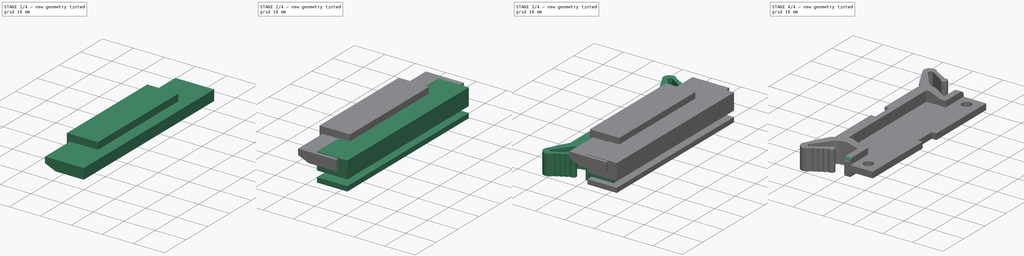
[diagram: build sequence overview — one tinted view per stage of 4, left to right]
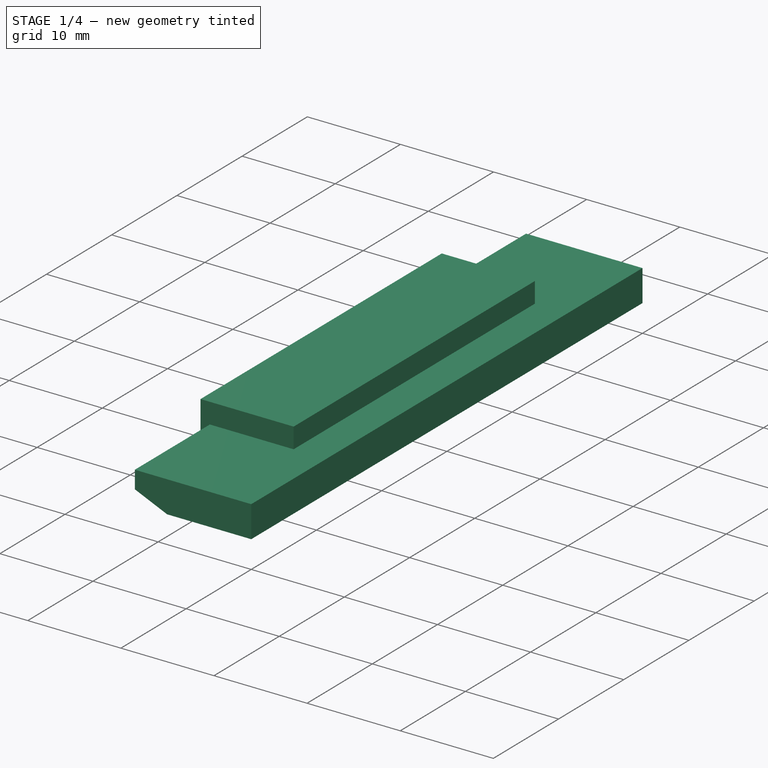
[diagram: stage 1 of 4 — iso view after this stage's code; geometry added in this stage tinted green]
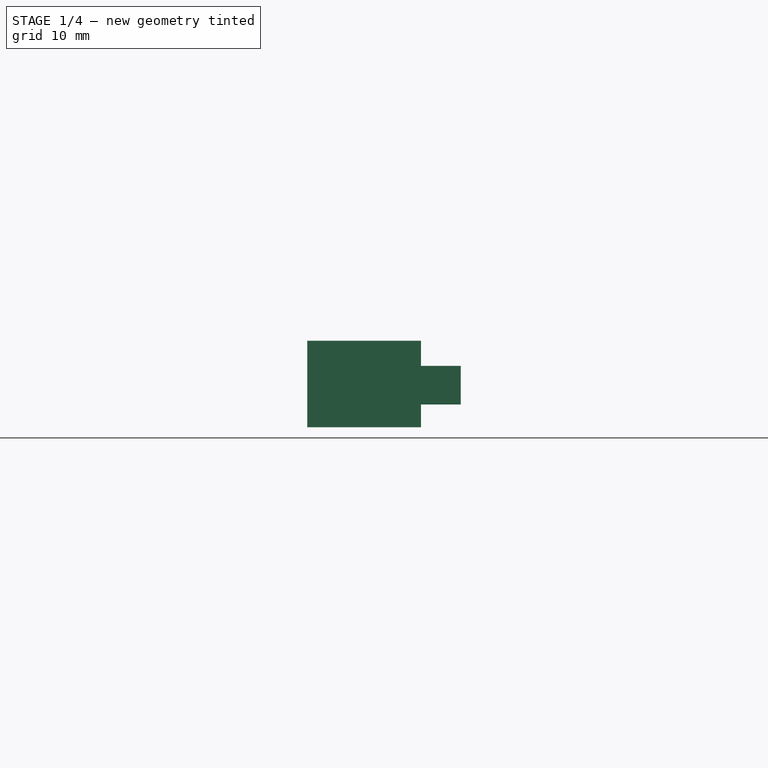
[diagram: stage 1 of 4 — front view after this stage's code; geometry added in this stage tinted green]
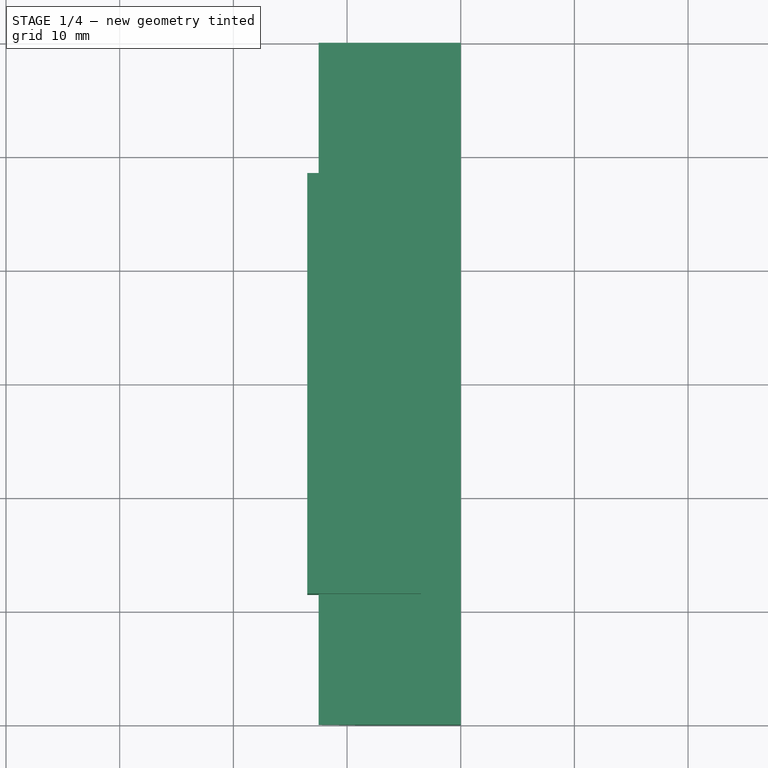
[diagram: stage 1 of 4 — top view after this stage's code; geometry added in this stage tinted green]
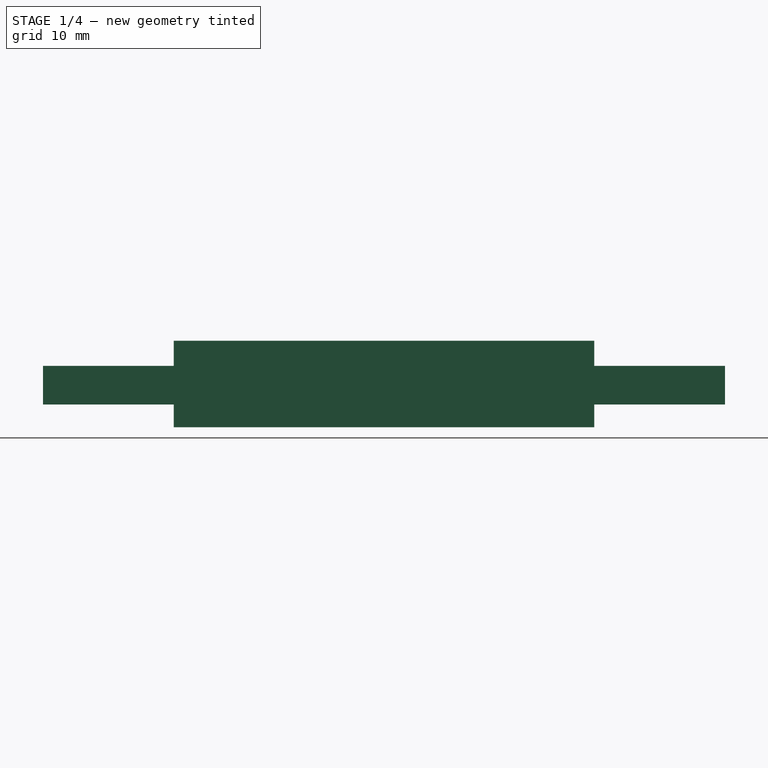
[diagram: stage 1 of 4 — right view after this stage's code; geometry added in this stage tinted green]
FCSTD DOCUMENT  (FreeCAD 1.0R39285 (Git))
Label: Tirador
License: Creative Commons Attribution-NonCommercial 4.0
LicenseURL: http://creativecommons.org/licenses/by-nc/4.0/
objects: Part::Feature×17, Part::Box×5, Sketcher::SketchObject×2, Part::Extrusion×2, App::Part×1, Image::ImagePlane×1, Part::MultiFuse×1, Part::Cut×1, Part::Fillet×1
note: 31 computed .brp shape members not serialized (recipe doc carries the construction recipe); baked Part::Feature solids carry a one-line shape summary decoded from their .brp

FEATURE [Part::Box] Box004  label="Cubo004"
  AttacherType = Attacher::AttachEngine3D
  Height = 7.6
  Length = 10
  Placement = pos=(-13.5,-18.5,3.6) rot=(0,0,1;0rad)
  Width = 37
FEATURE [Sketcher::SketchObject] Sketch001
  ArcFitTolerance = 1e-06
  FullyConstrained = false
  MakeInternals = false
  Placement = pos=(0,0,0) rot=(1,0,0;1.5708rad)
  sketch-geometry (5):
    g0: LineSegment StartX=0 StartY=5.6 StartZ=0 EndX=-9.03468 EndY=5.6 EndZ=0
    g1: LineSegment StartX=-9.03468 StartY=5.6 StartZ=0 EndX=-12.5 EndY=7.1 EndZ=0
    g2: LineSegment StartX=-12.5 StartY=7.1 StartZ=0 EndX=-12.5 EndY=9 EndZ=0
    g3: LineSegment StartX=-12.5 StartY=9 StartZ=0 EndX=0 EndY=9 EndZ=0
    g4: LineSegment StartX=0 StartY=9 StartZ=0 EndX=0 EndY=5.6 EndZ=0
  constraints (14):
    c: Horizontal(g0)
    c: Coincident(g0,g1)
    c: Coincident(g1,g2)
    c: Vertical(g2)
    c: Coincident(g2,g3)
    c: Horizontal(g3)
    c: Coincident(g3,g4)
    c: Coincident(g4,g0)
    c: Vertical(g4)
    c: PointOnObject(g3,g-2)
    c: DistanceY(g0) = 5.6
    c: DistanceX(g3,g3) = 12.5
    c: DistanceY(g2,g2) = 1.9
    c: DistanceY(g4,g4) = 3.4
FEATURE [Part::Extrusion] Extrude001
  Base = -> Sketch001
  Dir = (0,-1,2e-16)
  DirMode = 2
  FaceMakerClass = Part::FaceMakerBullseye
  FaceMakerMode = 3
  LengthFwd = 30
  LengthRev = 30
  Solid = true
  Symmetric = false
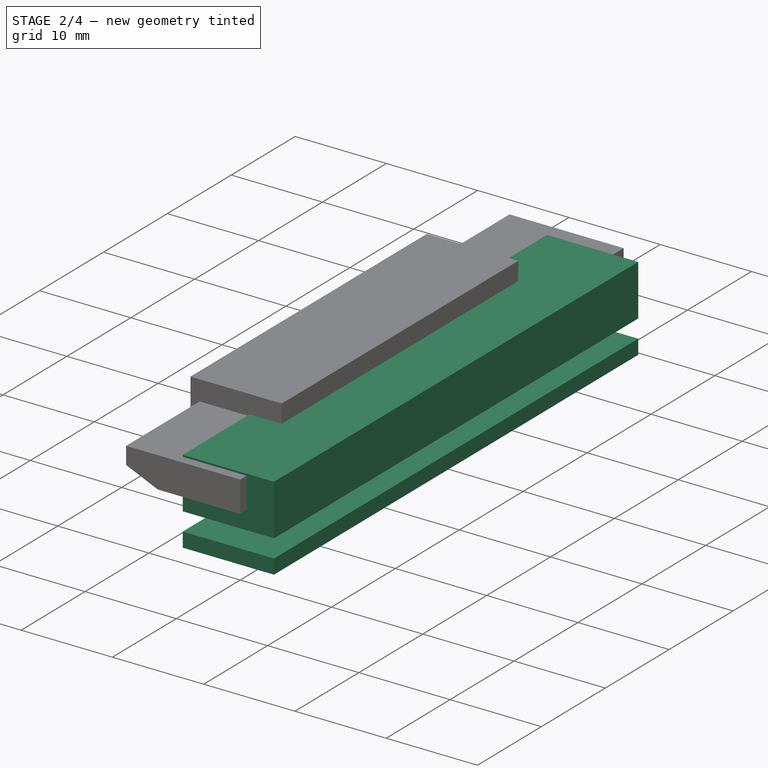
[diagram: stage 2 of 4 — iso view after this stage's code; geometry added in this stage tinted green]
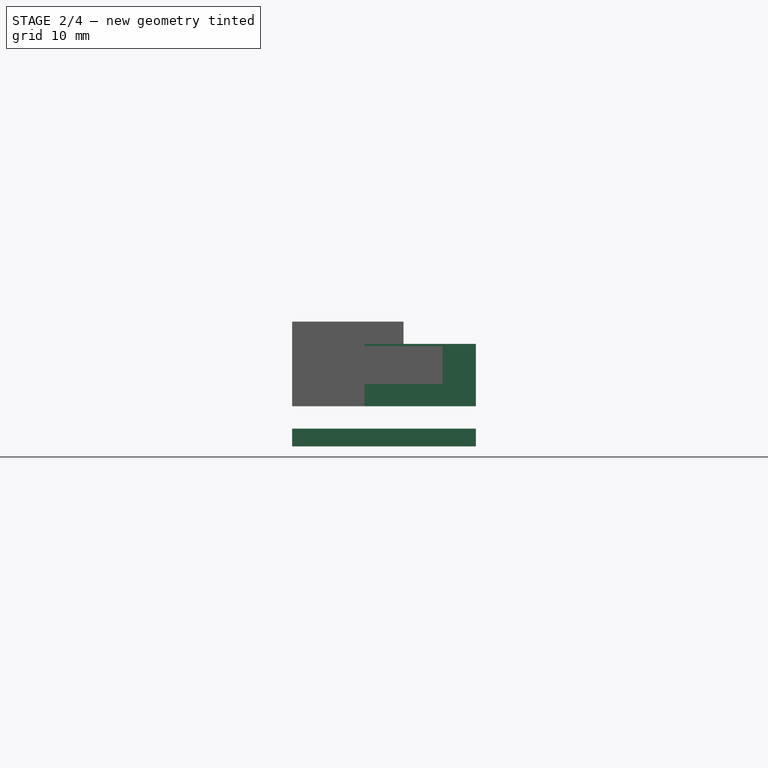
[diagram: stage 2 of 4 — front view after this stage's code; geometry added in this stage tinted green]
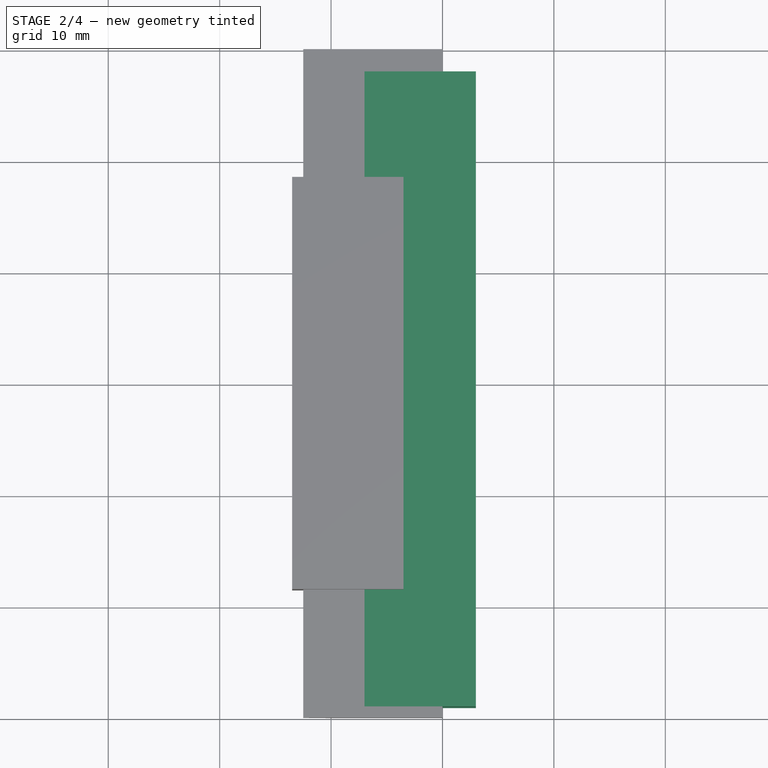
[diagram: stage 2 of 4 — top view after this stage's code; geometry added in this stage tinted green]
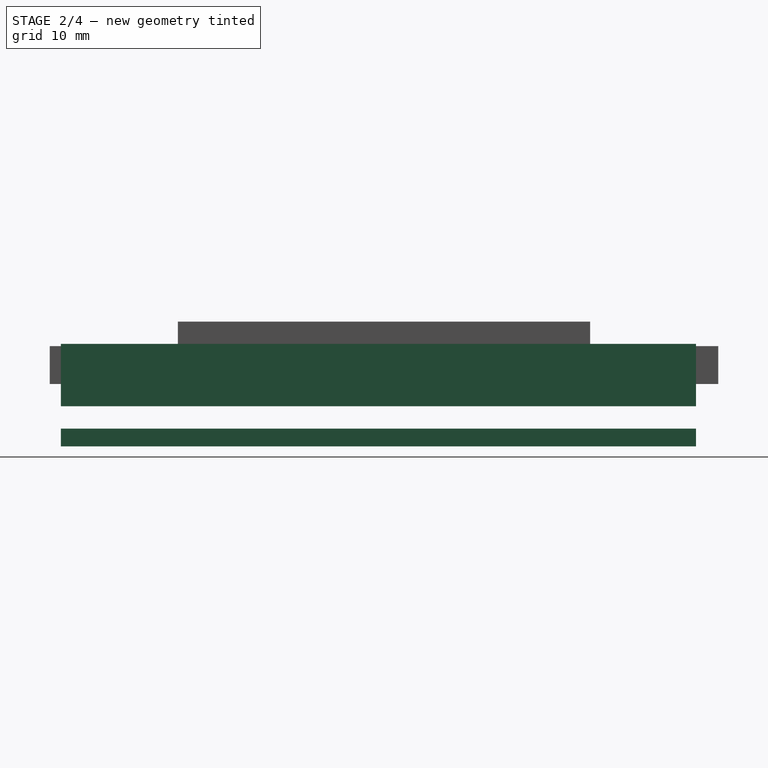
[diagram: stage 2 of 4 — right view after this stage's code; geometry added in this stage tinted green]
FEATURE [Part::Box] Box001  label="Cubo001"
  AttacherType = Attacher::AttachEngine3D
  Height = 1.6
  Length = 10
  Placement = pos=(-7,-29,0) rot=(0,0,1;0rad)
  Width = 57
FEATURE [Part::Box] Box002  label="Cubo002"
  AttacherType = Attacher::AttachEngine3D
  Height = 1.6
  Length = 10
  Placement = pos=(-13.5,-16,0) rot=(0,0,1;0rad)
  Width = 32
FEATURE [Part::Box] Box003  label="Cubo003"
  AttacherType = Attacher::AttachEngine3D
  Height = 5.6
  Length = 10
  Placement = pos=(-7,-29,3.6) rot=(0,0,1;0rad)
  Width = 57
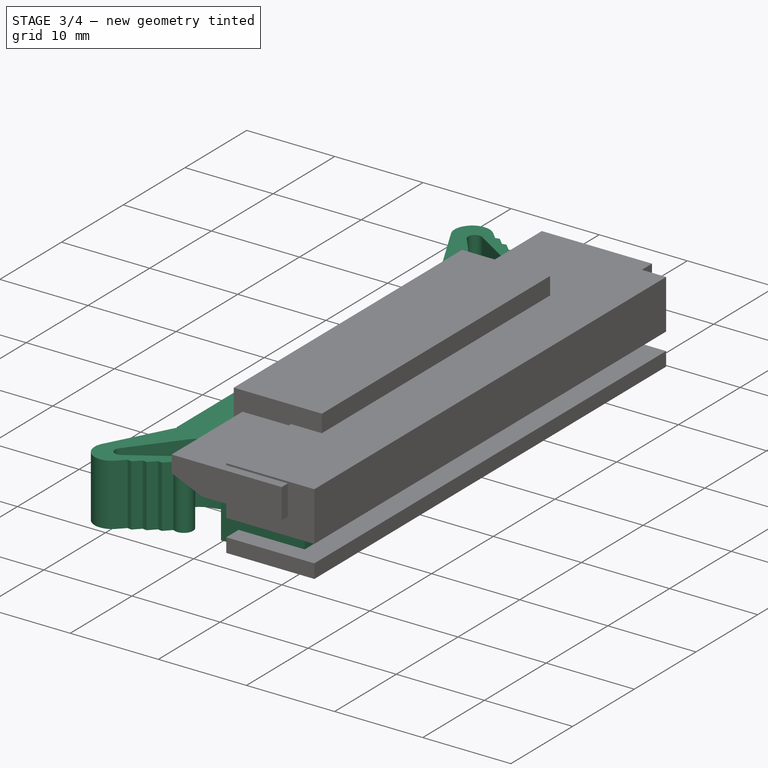
[diagram: stage 3 of 4 — iso view after this stage's code; geometry added in this stage tinted green]
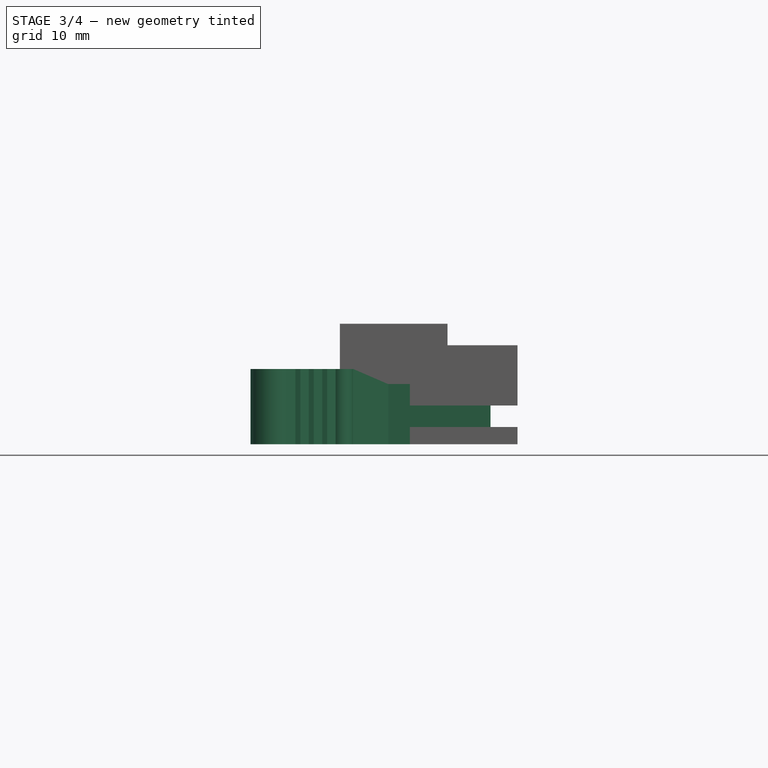
[diagram: stage 3 of 4 — front view after this stage's code; geometry added in this stage tinted green]
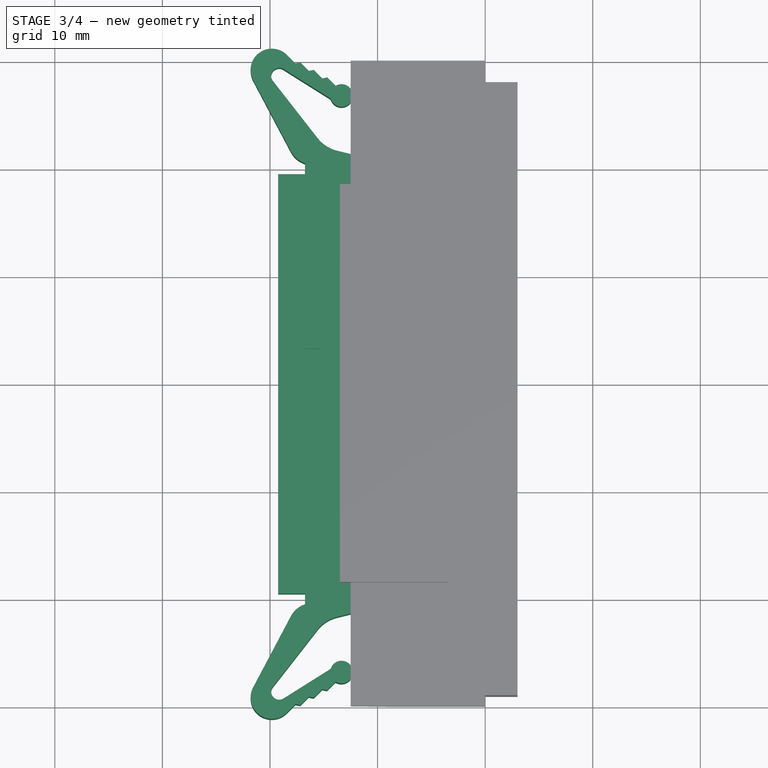
[diagram: stage 3 of 4 — top view after this stage's code; geometry added in this stage tinted green]
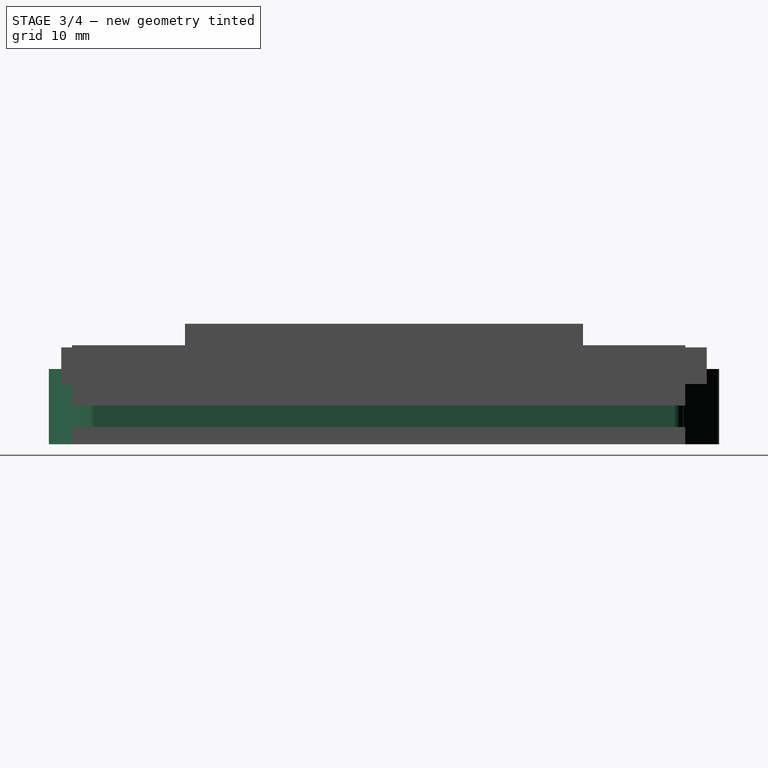
[diagram: stage 3 of 4 — right view after this stage's code; geometry added in this stage tinted green]
FEATURE [Part::Feature] Part__Feature  label="R_Axial_DIN0207_L6.3mm_D2.5mm_P15.24mm_Horizontal"
  Placement = pos=(180.606,-79.39,1.595) rot=(0,0,-1;1.5708rad)
  shape: bbox 2.706 x 16.04 x 5.603 mm, 17 faces (baked)
FEATURE [Part::Feature] Part__Feature001  label="DIP-28_W15.24mm_Socket"
  Placement = pos=(197.866,-109.22,1.595) rot=(0,0,1;1.5708rad)
  shape: bbox 35.56 x 17.78 x 7.787 mm, 375 faces (baked)
FEATURE [Part::Feature] Part__Feature002  label="DIP-28_W15.24mm_Socket001"
  Placement = pos=(197.866,-68.58,1.595) rot=(0,0,1;1.5708rad)
  shape: bbox 35.56 x 17.78 x 7.787 mm, 375 faces (baked)
FEATURE [Part::Feature] Part__Feature003  label="R_Axial_DIN0207_L6.3mm_D2.5mm_P10.16mm_Horizontal"
  Placement = pos=(181.102,-119.38,1.595) rot=(0,0,1;1.5708rad)
  shape: bbox 2.706 x 10.96 x 5.603 mm, 17 faces (baked)
FEATURE [Part::Feature] Part__Feature004  label="DIP-28_W15.24mm_Socket002"
  Placement = pos=(197.876,-88.88,1.595) rot=(0,0,1;1.5708rad)
  shape: bbox 35.56 x 17.78 x 7.787 mm, 375 faces (baked)
FEATURE [Part::Feature] Part__Feature005  label="DIP-14_W7.62mm"
  Placement = pos=(183.896,-102.235,1.595) rot=(0,0,1;0rad)
  shape: bbox 7.874 x 19.05 x 6.98 mm, 250 faces (baked)
FEATURE [Part::Feature] Part__Feature006  label="TO-220-3_Horizontal_TabDown"
  Placement = pos=(191.856,-52.578,1.595) rot=(0,0,1;1.5708rad)
  shape: bbox 19.74 x 10.25 x 10.78 mm, 80 faces (baked)
FEATURE [Part::Feature] Part__Feature007  label="DIP-14_W7.62mm001"
  Placement = pos=(183.896,-81.915,1.595) rot=(0,0,1;0rad)
  shape: bbox 7.874 x 19.05 x 6.98 mm, 250 faces (baked)
FEATURE [Part::Feature] Part__Feature008  label="DIP-28_W15.24mm_Socket003"
  Placement = pos=(197.866,-129.54,1.595) rot=(0,0,1;1.5708rad)
  shape: bbox 35.56 x 17.78 x 7.787 mm, 375 faces (baked)
FEATURE [Part::Feature] Part__Feature009  label="TO-92L_Inline_Wide"
  Placement = pos=(207.686,-48.98,1.595) rot=(0,0,1;3.14159rad)
  shape: bbox 5.58 x 3.745 x 13.2 mm, 27 faces (baked)
FEATURE [Part::Feature] Part__Feature010  label="C_Disc_D4.3mm_W1.9mm_P5.00mm"
  Placement = pos=(196.596,-99.568,1.595) rot=(0,0,1;3.14159rad)
  shape: bbox 5.5 x 1.9 x 6.4 mm, 10 faces (baked)
FEATURE [Part::Feature] Part__Feature011  label="DIP-14_W7.62mm002"
  Placement = pos=(183.896,-121.92,1.595) rot=(0,0,1;0rad)
  shape: bbox 7.874 x 19.05 x 6.98 mm, 250 faces (baked)
FEATURE [Part::Feature] Part__Feature012  label="C_Disc_D4.3mm_W1.9mm_P5.00mm001"
  Placement = pos=(196.85,-133.176,1.595) rot=(0,0,-1;1.5708rad)
  shape: bbox 1.9 x 5.5 x 6.4 mm, 10 faces (baked)
FEATURE [Part::Feature] Part__Feature013  label="CP_Radial_D8.0mm_P5.00mm"
  Placement = pos=(230.776,-50.0327,5.595) rot=(0.57735,0.57735,-0.57735;4.18879rad)
  shape: bbox 10 x 9.886 x 10.23 mm, 54 faces (baked)
FEATURE [Part::Feature] Part__Feature014  label="DIP-16_W7.62mm"
  Placement = pos=(183.642,-59.055,1.595) rot=(0,0,1;0rad)
  shape: bbox 7.874 x 19.18 x 6.98 mm, 284 faces (baked)
FEATURE [Part::Feature] Part__Feature015  label="C_Disc_D4.3mm_W1.9mm_P5.00mm002"
  Placement = pos=(190.166,-56.388,1.595) rot=(0,0,1;3.14159rad)
  shape: bbox 5.5 x 1.9 x 6.4 mm, 10 faces (baked)
FEATURE [Part::Feature] Part__Feature016  label="QL_GST_Rom_board_PCB"
  shape: bbox 74.68 x 99.06 x 1.51 mm, 287 faces (baked)
FEATURE [App::Part] QL_GST_Rom_board_1  label="QL_GST_Rom_board 1"
  Group = -> [Part__Feature,Part__Feature001,Part__Feature002,Part__Feature003,Part__Feature004,Part__Feature005,Part__Feature006,Part__Feature007,Part__Feature008,Part__Feature009,Part__Feature010,Part__Feature011,Part__Feature012,Part__Feature013,Part__Feature014,Part__Feature015,Part__Feature016]
  Origin = -> Origin
  Placement = pos=(-176.22,92.94,0) rot=(0,0,1;0rad)
FEATURE [Sketcher::SketchObject] Sketch
  ArcFitTolerance = 1e-06
  FullyConstrained = false
  MakeInternals = false
  Placement = pos=(0.5,0,1.6) rot=(0,0,1;0rad)
  sketch-geometry (52):
    g0: LineSegment StartX=-9.5 StartY=27 StartZ=0 EndX=0 EndY=27 EndZ=0
    g1: LineSegment StartX=0 StartY=27 StartZ=0 EndX=0 EndY=3.25 EndZ=0
    g2: LineSegment StartX=0 StartY=3.25 StartZ=0 EndX=-1.5 EndY=3.25 EndZ=0
    g3: LineSegment StartX=-1.5 StartY=3.25 StartZ=0 EndX=-1.5 EndY=-3.25 EndZ=0
    g4: LineSegment StartX=-1.5 StartY=-3.25 StartZ=0 EndX=0 EndY=-3.25 EndZ=0
    g5: LineSegment StartX=0 StartY=-3.25 StartZ=0 EndX=0 EndY=-27 EndZ=0
    g6: LineSegment StartX=-9.5 StartY=27 StartZ=0 EndX=-9.5 EndY=20.5 EndZ=0
    g7: LineSegment StartX=-9.5 StartY=20.5 StartZ=0 EndX=-14.25 EndY=21.6623 EndZ=0
    g8: ArcOfCircle CenterX=-13.4585 CenterY=24.8969 CenterZ=0 NormalX=0 NormalY=0 NormalZ=1 AngleXU=0 Radius=3.33 StartAngle=3.80466 EndAngle=4.47241
    g9: LineSegment StartX=-16.0829 StartY=22.8472 StartZ=0 EndX=-20.2311 EndY=28.1583 EndZ=0
    g10: LineSegment StartX=-19.2407 StartY=29.2549 StartZ=0 EndX=-14.8552 EndY=26.4964 EndZ=0
    g11: ArcOfCircle CenterX=-19.64 CenterY=28.62 CenterZ=0 NormalX=0 NormalY=0 NormalZ=1 AngleXU=0 Radius=0.75 StartAngle=1.00934 EndAngle=3.80466
    g12: ArcOfCircle CenterX=-13.85 CenterY=26.8 CenterZ=0 NormalX=0 NormalY=0 NormalZ=1 AngleXU=0 Radius=1.05 StartAngle=3.4349 EndAngle=8.40716
    g13: LineSegment StartX=-22.0767 StartY=28.2434 StartZ=0 EndX=-18.5626 EndY=21.608 EndZ=0
    g14: ArcOfCircle CenterX=-16.53 CenterY=22.6844 CenterZ=0 NormalX=0 NormalY=0 NormalZ=1 AngleXU=0 Radius=2.3 StartAngle=3.62864 EndAngle=4.39399
    g15: LineSegment StartX=-17.25 StartY=20.5 StartZ=0 EndX=-17.25 EndY=3.25 EndZ=0
    g16: LineSegment StartX=-18.9226 StartY=30.5659 StartZ=0 EndX=-18.1401 EndY=29.7786 EndZ=0
    g17: LineSegment StartX=-18.1401 StartY=29.7786 StartZ=0 EndX=-17.6765 EndY=29.8708 EndZ=0
    g18: LineSegment StartX=-17.6765 StartY=29.8708 StartZ=0 EndX=-16.8939 EndY=29.0835 EndZ=0
    g19: LineSegment StartX=-16.8939 StartY=29.0835 StartZ=0 EndX=-16.4303 EndY=29.1757 EndZ=0
    g20: LineSegment StartX=-16.4303 StartY=29.1757 StartZ=0 EndX=-15.6478 EndY=28.3885 EndZ=0
    g21: LineSegment StartX=-15.6478 StartY=28.3885 StartZ=0 EndX=-15.1842 EndY=28.4807 EndZ=0
    g22: LineSegment StartX=-15.1842 StartY=28.4807 StartZ=0 EndX=-14.4017 EndY=27.6934 EndZ=0
    g23: ArcOfCircle CenterX=-20.3269 CenterY=29.1701 CenterZ=0 NormalX=0 NormalY=0 NormalZ=1 AngleXU=0 Radius=1.98 StartAngle=0.782367 EndAngle=3.62864
    g24: LineSegment [constr] StartX=-20.3269 StartY=29.1701 StartZ=0 EndX=-9.5 EndY=20.5 EndZ=0
    g25: LineSegment StartX=-9.5 StartY=-27 StartZ=0 EndX=0 EndY=-27 EndZ=0
    g26: LineSegment StartX=-9.5 StartY=-27 StartZ=0 EndX=-9.5 EndY=-20.5 EndZ=0
    g27: LineSegment StartX=-9.5 StartY=-20.5 StartZ=0 EndX=-14.25 EndY=-21.6623 EndZ=0
    g28: ArcOfCircle CenterX=-13.4585 CenterY=-24.8969 CenterZ=0 NormalX=0 NormalY=0 NormalZ=1 AngleXU=0 Radius=3.33 StartAngle=1.81078 EndAngle=2.47853
    g29: LineSegment StartX=-16.0829 StartY=-22.8472 StartZ=0 EndX=-20.2311 EndY=-28.1583 EndZ=0
    g30: LineSegment StartX=-19.2407 StartY=-29.2549 StartZ=0 EndX=-14.8552 EndY=-26.4964 EndZ=0
    g31: ArcOfCircle CenterX=-19.64 CenterY=-28.62 CenterZ=0 NormalX=0 NormalY=0 NormalZ=1 AngleXU=0 Radius=0.75 StartAngle=2.47853 EndAngle=5.27385
    g32: ArcOfCircle CenterX=-13.85 CenterY=-26.8 CenterZ=0 NormalX=0 NormalY=0 NormalZ=1 AngleXU=0 Radius=1.05 StartAngle=4.15921 EndAngle=9.13147
    g33: LineSegment StartX=-22.0767 StartY=-28.2434 StartZ=0 EndX=-18.5626 EndY=-21.608 EndZ=0
    g34: ArcOfCircle CenterX=-16.53 CenterY=-22.6844 CenterZ=0 NormalX=0 NormalY=0 NormalZ=1 AngleXU=0 Radius=2.3 StartAngle=1.88919 EndAngle=2.65455
    g35: LineSegment StartX=-18.9226 StartY=-30.5659 StartZ=0 EndX=-18.1401 EndY=-29.7786 EndZ=0
    g36: LineSegment StartX=-18.1401 StartY=-29.7786 StartZ=0 EndX=-17.6765 EndY=-29.8708 EndZ=0
    g37: LineSegment StartX=-17.6765 StartY=-29.8708 StartZ=0 EndX=-16.8939 EndY=-29.0835 EndZ=0
    g38: LineSegment StartX=-16.8939 StartY=-29.0835 StartZ=0 EndX=-16.4303 EndY=-29.1757 EndZ=0
    g39: LineSegment StartX=-16.4303 StartY=-29.1757 StartZ=0 EndX=-15.6478 EndY=-28.3885 EndZ=0
    g40: LineSegment StartX=-15.6478 StartY=-28.3885 StartZ=0 EndX=-15.1842 EndY=-28.4807 EndZ=0
    g41: LineSegment StartX=-15.1842 StartY=-28.4807 StartZ=0 EndX=-14.4017 EndY=-27.6934 EndZ=0
    g42: ArcOfCircle CenterX=-20.3269 CenterY=-29.1701 CenterZ=0 NormalX=0 NormalY=0 NormalZ=1 AngleXU=0 Radius=1.98 StartAngle=2.65455 EndAngle=5.50082
    g43: LineSegment [constr] StartX=-20.3269 StartY=-29.1701 StartZ=0 EndX=-9.5 EndY=-20.5 EndZ=0
    g44: LineSegment StartX=-17.25 StartY=3.25 StartZ=0 EndX=-15.75 EndY=3.25 EndZ=0
    g45: LineSegment StartX=-15.75 StartY=-3.25 StartZ=0 EndX=-17.25 EndY=-3.25 EndZ=0
    g46: LineSegment StartX=-17.25 StartY=-3.25 StartZ=0 EndX=-17.25 EndY=-20.5 EndZ=0
    g47: LineSegment StartX=-15.75 StartY=3.25 StartZ=0 EndX=-15.75 EndY=-1.3e-15 EndZ=0
    g48: LineSegment StartX=-15.75 StartY=-1.3e-15 StartZ=0 EndX=-15.75 EndY=-3.25 EndZ=0
    g49: LineSegment [constr] StartX=-15.75 StartY=-1.3e-15 StartZ=0 EndX=-1.5 EndY=0 EndZ=0
    g50: Circle CenterX=-4 CenterY=23.375 CenterZ=0 NormalX=0 NormalY=0 NormalZ=1 AngleXU=0 Radius=1.6
    g51: Circle CenterX=-4 CenterY=-23.375 CenterZ=0 NormalX=0 NormalY=0 NormalZ=1 AngleXU=0 Radius=1.53347
  constraints (144):
    c: Horizontal(g0)
    c: Coincident(g0,g1)
    c: Vertical(g1)
    c: Coincident(g1,g2)
    c: Coincident(g2,g3)
    c: Vertical(g3)
    c: Coincident(g3,g4)
    c: Coincident(g4,g5)
    c: Vertical(g5)
    c: Horizontal(g2)
    c: Horizontal(g4)
    c: Coincident(g6,g0)
    c: Vertical(g6)
    c: Equal(g1,g5)
    c: Vertical(g4,g1)
    c: Coincident(g7,g6)
    c: Coincident(g12,g10)
    c: Tangent(g11,g9) = 1.5708
    c: Tangent(g11,g10) = 1.5708
    c: Tangent(g9,g8) = 1.5708
    c: Tangent(g8,g7) = 1.5708
    c: Vertical(g15)
    c: Coincident(g14,g15)
    c: Tangent(g14,g13) = -1.5708
    c: Coincident(g16,g17)
    c: Coincident(g17,g18)
    c: Coincident(g18,g19)
    c: Coincident(g19,g20)
    c: Coincident(g20,g21)
    c: Coincident(g21,g22)
    c: Coincident(g22,g12)
    c: DistanceY(g5,g0) = 54
    c: DistanceX(g4,g4) = 1.5
    c: DistanceY(g3,g3) = 6.5
    c: DistanceY(g6,g6) = 6.5
    c: Radius(g11) = 0.75
    c: DistanceX(g11,g0) = 10.14
    c: DistanceY(g0,g11) = 1.62
    c: Radius(g8) = 3.33
    c: Angle(g6,g7) = 1.33081
    c: DistanceX(g7,g6) = 4.75
    c: DistanceX(g11,g12) = 5.79
    c: Radius(g12) = 1.05
    c: Angle(g9,g10) = 0.346273
    c: DistanceX(g14,g7) = 3
    c: Radius(g14) = 2.3
    c: Horizontal(g14,g6)
    c: Parallel(g17,g19)
    c: Parallel(g19,g21)
    c: Equal(g17,g19)
    c: Equal(g19,g21)
    c: Parallel(g16,g18)
    c: Parallel(g18,g20)
    c: Parallel(g20,g22)
    c: Equal(g22,g20)
    c: Equal(g20,g18)
    c: Equal(g18,g16)
    c: Distance(g10,g12) = 1.28
    c: Tangent(g23,g16) = 1.5708
    c: Tangent(g23,g13) = -1.5708
    c: Radius(g23) = 1.98
    c: Coincident(g24,g23)
    c: Coincident(g24,g6)
    c: PointOnObject(g11,g24)
    c: Distance(g23,g11) = 0.88
    c: Angle(g21,g20) = 2.15688
    c: Distance(g16) = 1.11
    c: DistanceX(g14,g14) = 0.72
    c: Horizontal(g25)
    c: Coincident(g26,g25)
    c: Vertical(g26)
    c: Coincident(g27,g26)
    c: Coincident(g32,g30)
    c: Tangent(g31,g29) = -1.5708
    c: Tangent(g31,g30) = -1.5708
    c: Tangent(g29,g28) = -1.5708
    c: Tangent(g28,g27) = -1.5708
    c: Tangent(g34,g33) = 1.5708
    c: Coincident(g35,g36)
    c: Coincident(g36,g37)
    c: Coincident(g37,g38)
    c: Coincident(g38,g39)
    c: Coincident(g39,g40)
    c: Coincident(g40,g41)
    c: Coincident(g41,g32)
    c: Radius(g31) = 0.75
    c: Radius(g28) = 3.33
    c: Angle(g26,g27) = -1.33081
    c: Radius(g32) = 1.05
    c: Angle(g29,g30) = -0.346273
    c: Radius(g34) = 2.3
    c: Parallel(g36,g38)
    c: Parallel(g38,g40)
    c: Equal(g36,g38)
    c: Equal(g38,g40)
    c: Parallel(g35,g37)
    c: Parallel(g37,g39)
    c: Parallel(g39,g41)
    c: Equal(g41,g39)
    c: Equal(g39,g37)
    c: Equal(g37,g35)
    c: Distance(g30,g32) = 1.28
    c: Tangent(g42,g35) = -1.5708
    c: Tangent(g42,g33) = 1.5708
    c: Radius(g42) = 1.98
    c: Coincident(g43,g42)
    c: Coincident(g43,g26)
    c: PointOnObject(g31,g43)
    c: Distance(g42,g31) = 0.88
    c: Angle(g40,g39) = -2.15688
    c: Distance(g35) = 1.11
    c: Coincident(g25,g5)
    c: Equal(g25,g0)
    c: Coincident(g15,g44)
    c: Horizontal(g44)
    c: Coincident(g44,g47)
    c: Coincident(g48,g45)
    c: Horizontal(g45)
    c: Coincident(g45,g46)
    c: Coincident(g46,g34)
    c: Vertical(g46)
    c: Equal(g15,g46)
    c: Horizontal(g48,g3)
    c: Vertical(g45,g15)
    c: Equal(g44,g2)
    c: Coincident(g47,g48)
    c: Vertical(g47)
    c: Vertical(g48)
    c: Equal(g47,g48)
    c: Coincident(g49,g47)
    c: Symmetric(g3,g3,g49)
    c: Symmetric(g31,g11,g49)
    c: Equal(g26,g6)
    c: Symmetric(g32,g12,g49)
    c: Vertical(g27,g7)
    c: Symmetric(g34,g14,g49)
    c: Vertical(g1,g-1)
    c: Horizontal(g49,g-1)
    c: Symmetric(g51,g50,g49)
    c: Diameter(g50) = 3.2
    c: DistanceX(g50,g0) = 4
    c: DistanceY(g51,g50) = 46.75
    c: DistanceX(g0,g0) = 9.5
    c: DistanceY(g12,g11) = 1.82
FEATURE [Image::ImagePlane] _26039257_10171949886340142_7660354466002877031_n  label="526039257_10171949886340142_7660354466002877031_n"
  Placement = pos=(203.4,-91.2,1.6) rot=(0,0,1;1.5708rad)
  XSize = 111
  YSize = 109
FEATURE [Part::Extrusion] Extrude
  Base = -> Sketch
  Dir = (0,0,1)
  DirMode = 2
  FaceMakerClass = Part::FaceMakerBullseye
  FaceMakerMode = 3
  LengthFwd = 5.4
  LengthRev = 1.6
  Solid = true
  Symmetric = false
FEATURE [Part::Box] Box  label="Cubo"
  AttacherType = Attacher::AttachEngine3D
  Height = 5
  Length = 4
  Placement = pos=(-15.25,19.5,1) rot=(0,0,1;3.14159rad)
  Width = 39
FEATURE [Part::MultiFuse] Fusion
  Shapes = -> [Box001,Box,Box002,Box003,Box004,Extrude001]
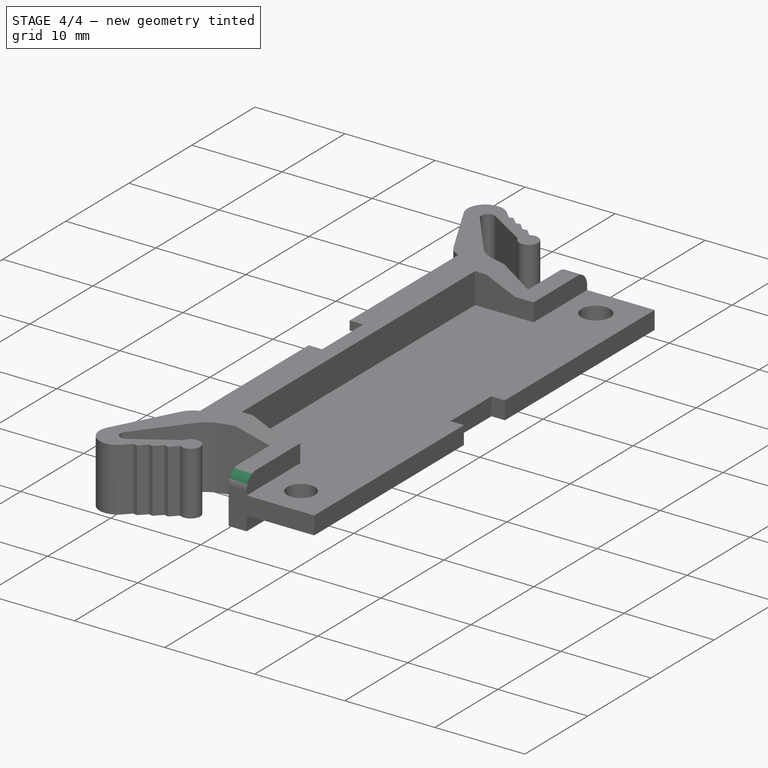
[diagram: stage 4 of 4 — iso view after this stage's code; geometry added in this stage tinted green]
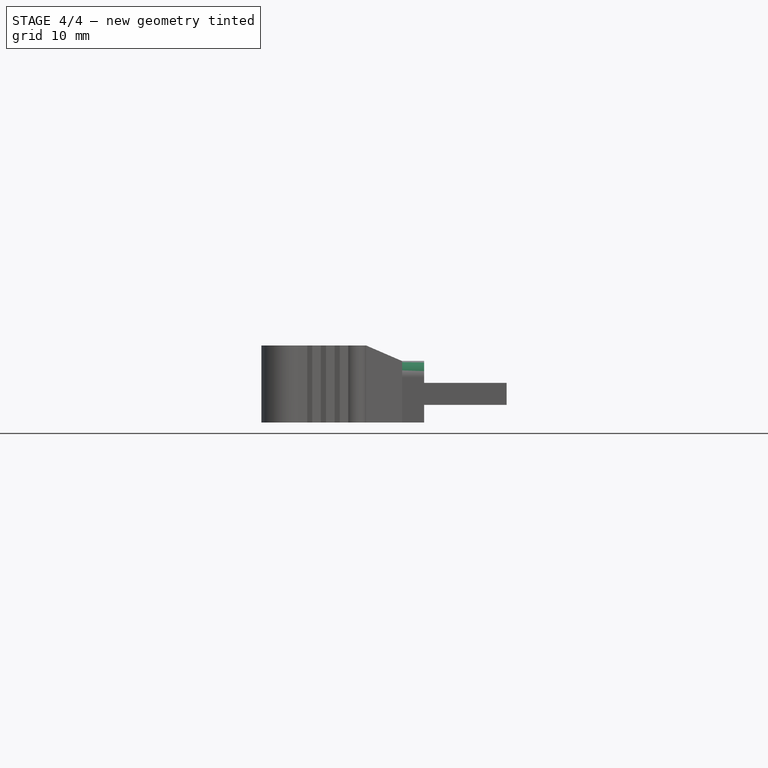
[diagram: stage 4 of 4 — front view after this stage's code; geometry added in this stage tinted green]
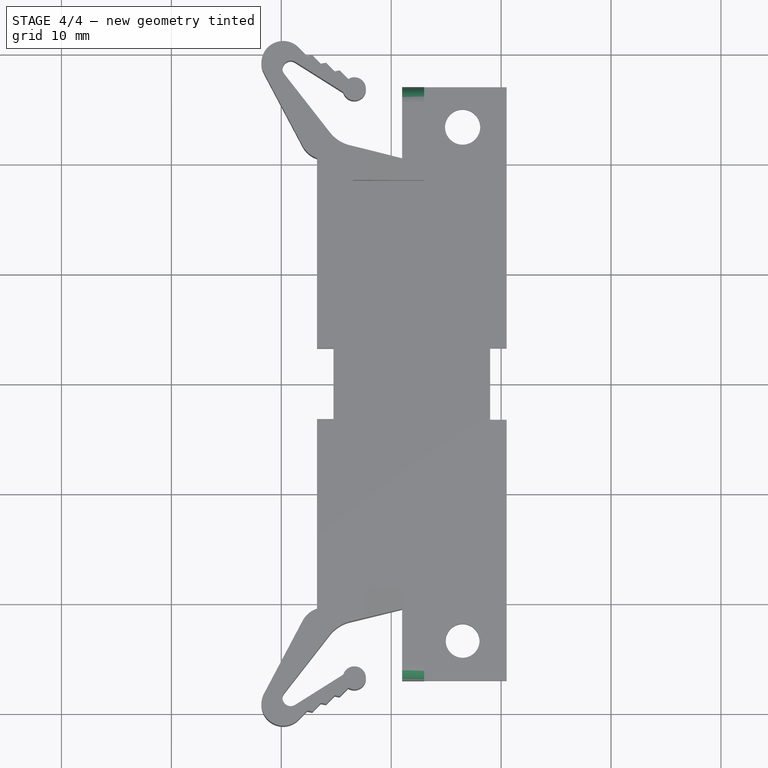
[diagram: stage 4 of 4 — top view after this stage's code; geometry added in this stage tinted green]
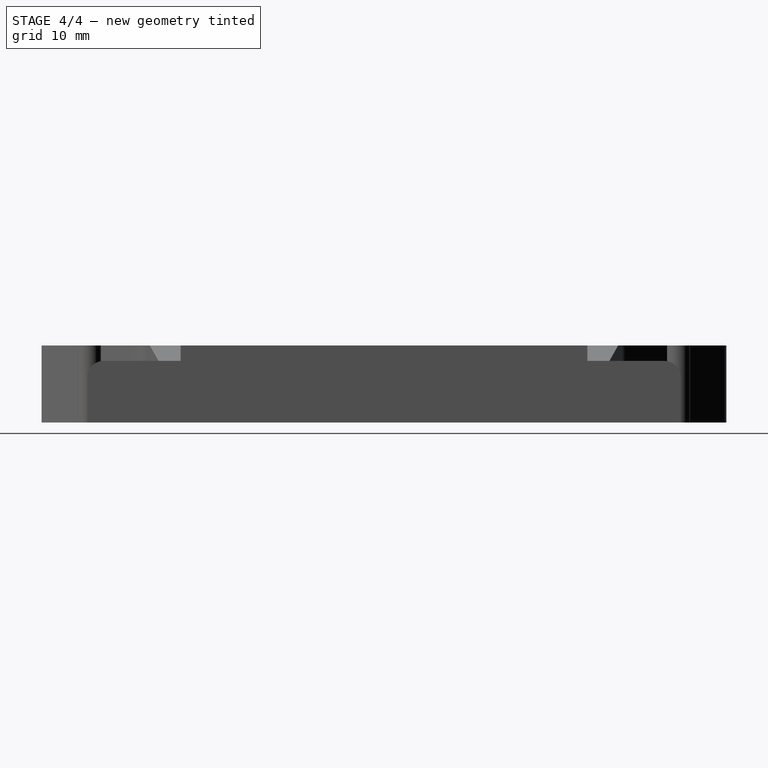
[diagram: stage 4 of 4 — right view after this stage's code; geometry added in this stage tinted green]
FEATURE [Part::Cut] Cut
  Base = -> Extrude
  Refine = true
  Tool = -> Fusion
FEATURE [Part::Fillet] Fillet
  Base = -> Cut
  EdgeLinks = -> Cut [Edge105,Edge120]
  Edges = 2 edges r=1.5: [Edge105,Edge120]
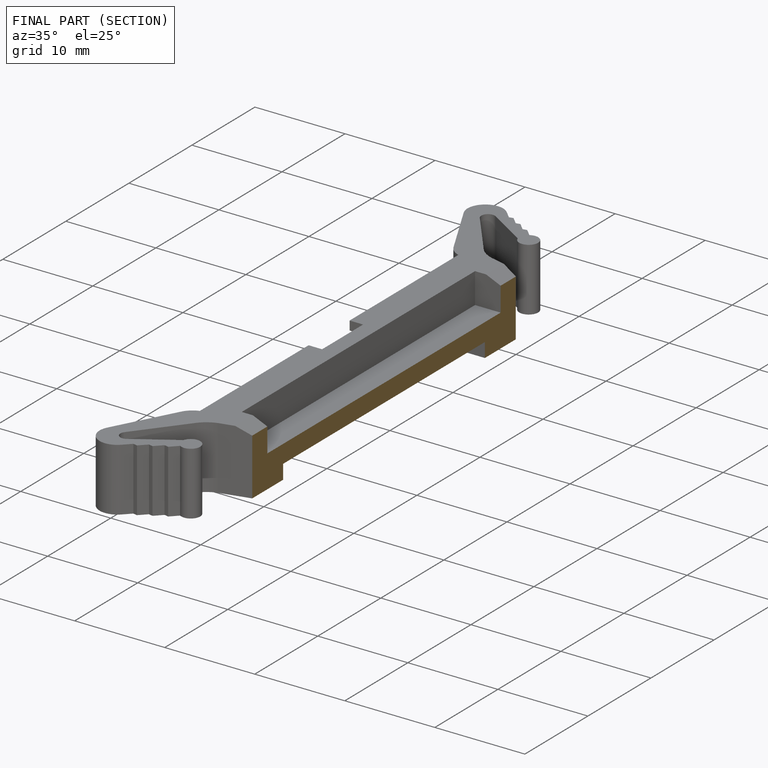
[diagram: finished part — half-section view (interior)]
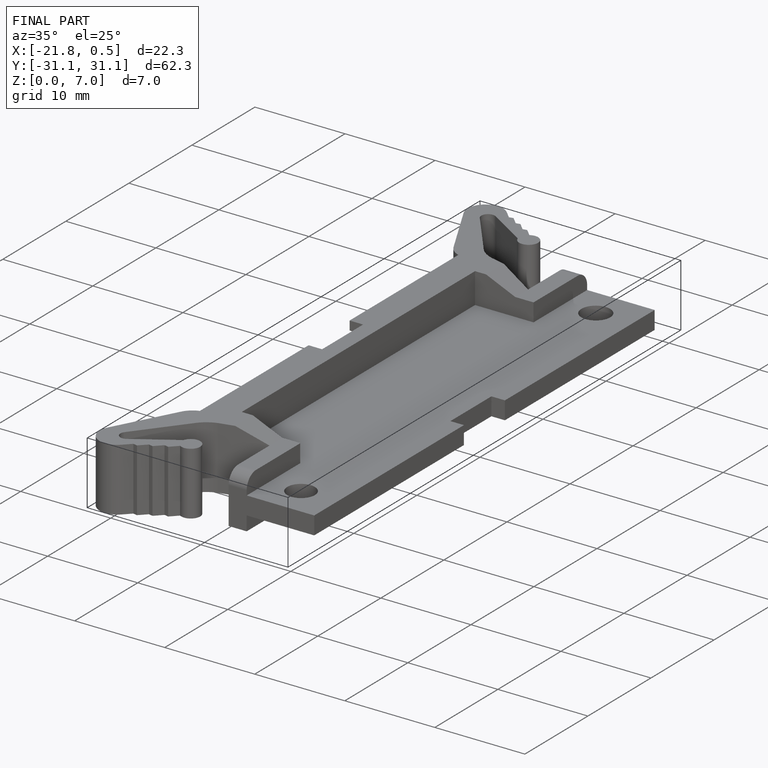
[diagram: finished part — iso view with bounding-box wireframe]
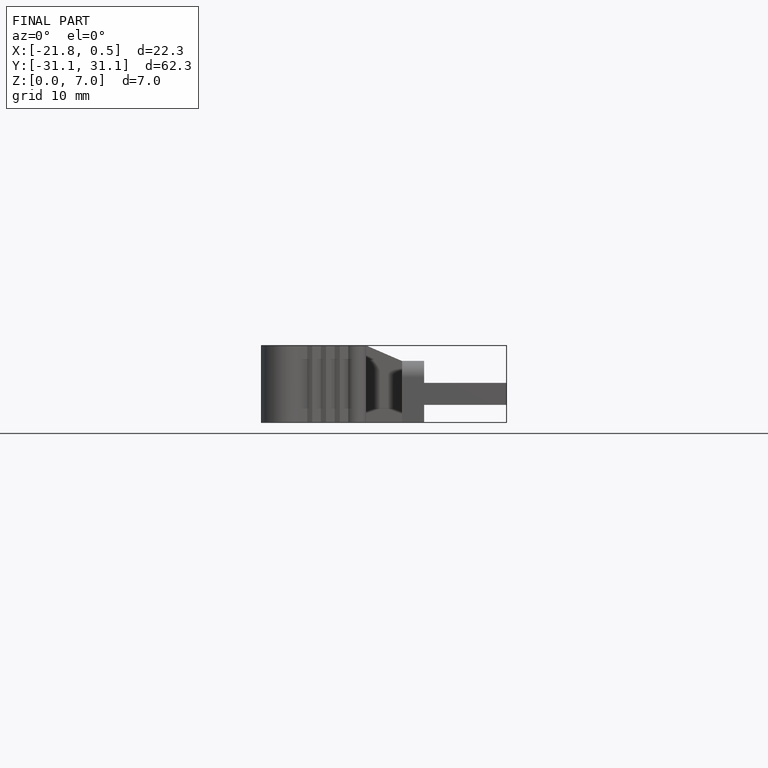
[diagram: finished part — front view with bounding-box wireframe]
